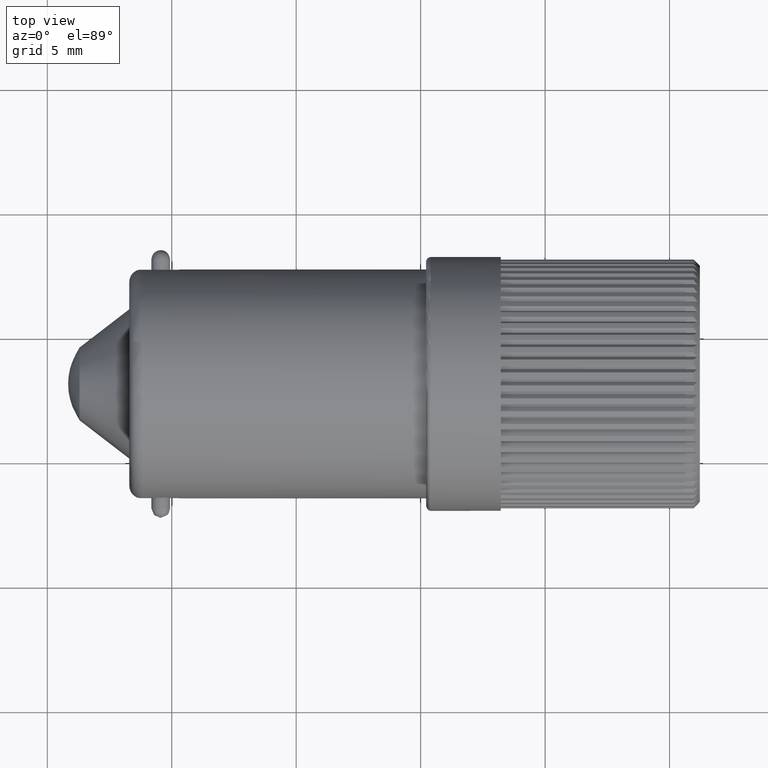
[diagram: clean part render]
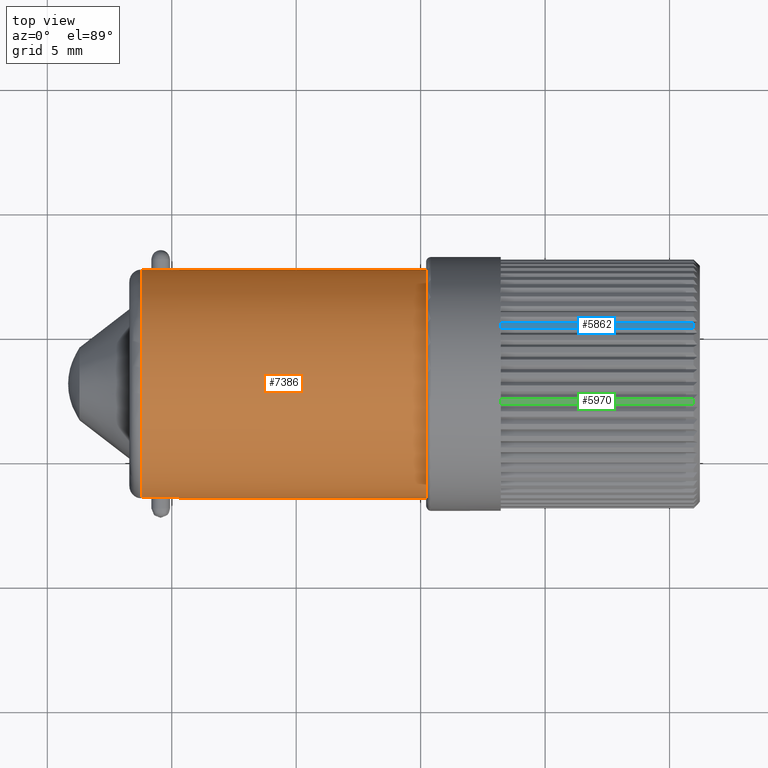
[diagram: same view with three faces highlighted in distinct colors, each labeled with its STEP entity id]
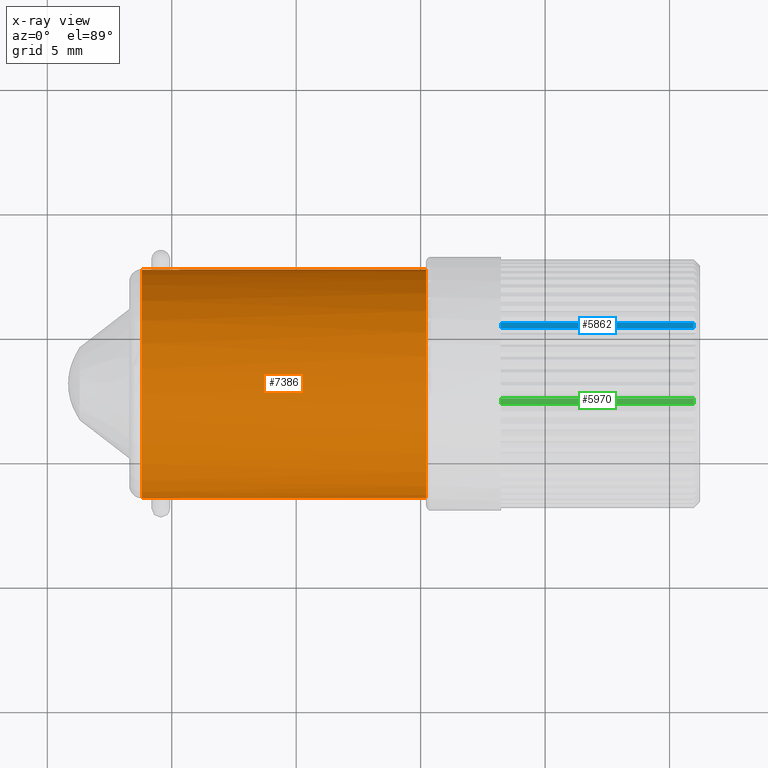
[diagram: x-ray of the same camera — body ghosted, the three highlighted faces saturated]
A machine part, top view with three faces highlighted in distinct colors.
The next image is the same camera in x-ray (body ghosted, the three faces saturated) — at least one of them is partly hidden behind the body in this view.
Their STEP definitions:

[orange] entity #7386 — the highlighted cylindrical surface (bore or boss wall) has radius 4.6 mm, axis along (1, 0, 0).
#7203=CARTESIAN_POINT('',(-9.705609115138564,7.692961736609104,-0.428485705712572));
#7204=VERTEX_POINT('',#7203);
#7205=CARTESIAN_POINT('',(-9.705609115138564,7.692961736609104,0.428485705712572));
#7206=VERTEX_POINT('',#7205);
#7207=CARTESIAN_POINT('',(-9.705609115138564,3.112961736609106,0.0));
#7208=DIRECTION('',(1.0,0.0,0.0));
#7209=DIRECTION('',(0.0,1.0,0.0));
#7210=AXIS2_PLACEMENT_3D('',#7207,#7208,#7209);
#7211=CIRCLE('',#7210,4.599999999999999);
#7212=EDGE_CURVE('',#7204,#7206,#7211,.T.);
#7228=CARTESIAN_POINT('',(-11.205609115138566,7.692961736609104,-0.428485705712572));
#7229=VERTEX_POINT('',#7228);
#7230=CARTESIAN_POINT('',(-11.205609115138566,7.692961736609104,-0.428485705712572));
#7231=DIRECTION('',(1.0,0.0,0.0));
#7232=VECTOR('',#7231,1.500000000000002);
#7233=LINE('',#7230,#7232);
#7234=EDGE_CURVE('',#7229,#7204,#7233,.T.);
#7236=CARTESIAN_POINT('',(-11.205609115138566,7.692961736609104,0.428485705712572));
#7237=VERTEX_POINT('',#7236);
#7260=CARTESIAN_POINT('',(-9.705609115138564,7.692961736609104,0.428485705712572));
#7261=DIRECTION('',(-1.0,0.0,0.0));
#7262=VECTOR('',#7261,1.500000000000002);
#7263=LINE('',#7260,#7262);
#7264=EDGE_CURVE('',#7206,#7237,#7263,.T.);
#7278=CARTESIAN_POINT('',(-9.705609115138564,-1.467038263390893,0.428485705712572));
#7279=VERTEX_POINT('',#7278);
#7280=CARTESIAN_POINT('',(-9.705609115138564,-1.467038263390893,-0.428485705712572));
#7281=VERTEX_POINT('',#7280);
#7282=CARTESIAN_POINT('',(-9.705609115138564,3.112961736609106,0.0));
#7283=DIRECTION('',(1.0,0.0,0.0));
#7284=DIRECTION('',(0.0,1.0,0.0));
#7285=AXIS2_PLACEMENT_3D('',#7282,#7283,#7284);
#7286=CIRCLE('',#7285,4.599999999999999);
#7287=EDGE_CURVE('',#7279,#7281,#7286,.T.);
#7303=CARTESIAN_POINT('',(-11.205609115138566,-1.467038263390893,0.428485705712572));
#7304=VERTEX_POINT('',#7303);
#7305=CARTESIAN_POINT('',(-11.205609115138566,-1.467038263390893,0.428485705712572));
#7306=DIRECTION('',(1.0,0.0,0.0));
#7307=VECTOR('',#7306,1.500000000000002);
#7308=LINE('',#7305,#7307);
#7309=EDGE_CURVE('',#7304,#7279,#7308,.T.);
#7311=CARTESIAN_POINT('',(-11.205609115138566,-1.467038263390893,-0.428485705712572));
#7312=VERTEX_POINT('',#7311);
#7335=CARTESIAN_POINT('',(-9.705609115138564,-1.467038263390893,-0.428485705712572));
#7336=DIRECTION('',(-1.0,0.0,0.0));
#7337=VECTOR('',#7336,1.500000000000002);
#7338=LINE('',#7335,#7337);
#7339=EDGE_CURVE('',#7281,#7312,#7338,.T.);
#7348=CARTESIAN_POINT('',(-5.743960075101469,3.112961736609106,0.0));
#7349=DIRECTION('',(1.0,0.0,0.0));
#7350=DIRECTION('',(0.0,1.0,0.0));
#7351=AXIS2_PLACEMENT_3D('',#7348,#7349,#7350);
#7352=CYLINDRICAL_SURFACE('',#7351,4.599999999999999);
#7353=ORIENTED_EDGE('',*,*,#7234,.T.);
#7354=ORIENTED_EDGE('',*,*,#7212,.T.);
#7355=ORIENTED_EDGE('',*,*,#7264,.T.);
#7356=CARTESIAN_POINT('',(-11.205609115138564,3.112961736609106,0.0));
#7357=DIRECTION('',(-1.0,0.0,0.0));
#7358=DIRECTION('',(0.0,-1.0,0.0));
#7359=AXIS2_PLACEMENT_3D('',#7356,#7357,#7358);
#7360=CIRCLE('',#7359,4.599999999999999);
#7361=EDGE_CURVE('',#7304,#7237,#7360,.T.);
#7362=ORIENTED_EDGE('',*,*,#7361,.F.);
#7363=ORIENTED_EDGE('',*,*,#7309,.T.);
#7364=ORIENTED_EDGE('',*,*,#7287,.T.);
#7365=ORIENTED_EDGE('',*,*,#7339,.T.);
#7366=CARTESIAN_POINT('',(-11.205609115138564,3.112961736609106,0.0));
#7367=DIRECTION('',(-1.0,0.0,0.0));
#7368=DIRECTION('',(0.0,-1.0,0.0));
#7369=AXIS2_PLACEMENT_3D('',#7366,#7367,#7368);
#7370=CIRCLE('',#7369,4.599999999999999);
#7371=EDGE_CURVE('',#7229,#7312,#7370,.T.);
#7372=ORIENTED_EDGE('',*,*,#7371,.F.);
#7373=EDGE_LOOP('',(#7353,#7354,#7355,#7362,#7363,#7364,#7365,#7372));
#7374=FACE_OUTER_BOUND('',#7373,.T.);
#7375=CARTESIAN_POINT('',(0.217688964935625,7.712961736609105,0.0));
#7376=VERTEX_POINT('',#7375);
#7377=CARTESIAN_POINT('',(0.217688964935625,3.112961736609106,0.0));
#7378=DIRECTION('',(1.0,0.0,0.0));
#7379=DIRECTION('',(0.0,1.0,0.0));
#7380=AXIS2_PLACEMENT_3D('',#7377,#7378,#7379);
#7381=CIRCLE('',#7380,4.600000000000000);
#7382=EDGE_CURVE('',#7376,#7376,#7381,.T.);
#7383=ORIENTED_EDGE('',*,*,#7382,.F.);
#7384=EDGE_LOOP('',(#7383));
#7385=FACE_BOUND('',#7384,.T.);
#7386=ADVANCED_FACE('',(#7374,#7385),#7352,.T.);

[blue] entity #5862 — the highlighted cylindrical surface (partial cylindrical patch) has radius 5 mm, axis along (1, 0, 0).
#4153=CARTESIAN_POINT('',(3.217688964935626,5.280791434862301,4.505609215119685));
#4154=VERTEX_POINT('',#4153);
#4155=CARTESIAN_POINT('',(10.967688964935629,5.280791434862299,4.505609215119685));
#4156=VERTEX_POINT('',#4155);
#4157=CARTESIAN_POINT('',(3.217688964935626,5.280791434862301,4.505609215119685));
#4158=DIRECTION('',(1.0,0.0,0.0));
#4159=VECTOR('',#4158,7.750000000000004);
#4160=LINE('',#4157,#4159);
#4161=EDGE_CURVE('',#4154,#4156,#4160,.T.);
#4285=CARTESIAN_POINT('',(10.967688964935629,5.483857835538433,4.402141716037963));
#4286=VERTEX_POINT('',#4285);
#4287=CARTESIAN_POINT('',(3.217688964935625,5.483857835538433,4.402141716037962));
#4288=VERTEX_POINT('',#4287);
#4289=CARTESIAN_POINT('',(10.967688964935629,5.483857835538433,4.402141716037963));
#4290=DIRECTION('',(-1.0,0.0,0.0));
#4291=VECTOR('',#4290,7.750000000000004);
#4292=LINE('',#4289,#4291);
#4293=EDGE_CURVE('',#4286,#4288,#4292,.T.);
#5531=CARTESIAN_POINT('',(3.217688964935626,3.112961736609106,0.0));
#5532=DIRECTION('',(1.0,0.0,0.0));
#5533=DIRECTION('',(0.0,1.0,0.0));
#5534=AXIS2_PLACEMENT_3D('',#5531,#5532,#5533);
#5535=CIRCLE('',#5534,4.999999999999992);
#5536=EDGE_CURVE('',#4288,#4154,#5535,.T.);
#5845=CARTESIAN_POINT('',(7.217688964935625,3.112961736609106,0.0));
#5846=DIRECTION('',(1.0,0.0,0.0));
#5847=DIRECTION('',(0.0,1.0,0.0));
#5848=AXIS2_PLACEMENT_3D('',#5845,#5846,#5847);
#5849=CYLINDRICAL_SURFACE('',#5848,4.999999999999996);
#5850=ORIENTED_EDGE('',*,*,#4161,.T.);
#5851=CARTESIAN_POINT('',(10.967688964935629,3.112961736609106,0.0));
#5852=DIRECTION('',(1.0,0.0,0.0));
#5853=DIRECTION('',(0.0,-1.0,0.0));
#5854=AXIS2_PLACEMENT_3D('',#5851,#5852,#5853);
#5855=CIRCLE('',#5854,4.999999999999996);
#5856=EDGE_CURVE('',#4286,#4156,#5855,.T.);
#5857=ORIENTED_EDGE('',*,*,#5856,.F.);
#5858=ORIENTED_EDGE('',*,*,#4293,.T.);
#5859=ORIENTED_EDGE('',*,*,#5536,.T.);
#5860=EDGE_LOOP('',(#5850,#5857,#5858,#5859));
#5861=FACE_OUTER_BOUND('',#5860,.T.);
#5862=ADVANCED_FACE('',(#5861),#5849,.T.);

[green] entity #5970 — the highlighted cylindrical surface (partial cylindrical patch) has radius 5 mm, axis along (1, 0, 0).
#3643=CARTESIAN_POINT('',(3.217688964935626,2.218442154166238,4.919332751159063));
#3644=VERTEX_POINT('',#3643);
#3645=CARTESIAN_POINT('',(10.967688964935629,2.218442154166237,4.919332751159063));
#3646=VERTEX_POINT('',#3645);
#3647=CARTESIAN_POINT('',(3.217688964935626,2.218442154166238,4.919332751159063));
#3648=DIRECTION('',(1.0,0.0,0.0));
#3649=VECTOR('',#3648,7.750000000000004);
#3650=LINE('',#3647,#3649);
#3651=EDGE_CURVE('',#3644,#3646,#3650,.T.);
#3775=CARTESIAN_POINT('',(10.967688964935629,2.443542993351605,4.954985221590020));
#3776=VERTEX_POINT('',#3775);
#3777=CARTESIAN_POINT('',(3.217688964935625,2.443542993351606,4.954985221590020));
#3778=VERTEX_POINT('',#3777);
#3779=CARTESIAN_POINT('',(10.967688964935629,2.443542993351605,4.954985221590020));
#3780=DIRECTION('',(-1.0,0.0,0.0));
#3781=VECTOR('',#3780,7.750000000000004);
#3782=LINE('',#3779,#3781);
#3783=EDGE_CURVE('',#3776,#3778,#3782,.T.);
#5477=CARTESIAN_POINT('',(3.217688964935626,3.112961736609106,0.0));
#5478=DIRECTION('',(1.0,0.0,0.0));
#5479=DIRECTION('',(0.0,1.0,0.0));
#5480=AXIS2_PLACEMENT_3D('',#5477,#5478,#5479);
#5481=CIRCLE('',#5480,4.999999999999992);
#5482=EDGE_CURVE('',#3778,#3644,#5481,.T.);
#5953=CARTESIAN_POINT('',(7.217688964935625,3.112961736609106,0.0));
#5954=DIRECTION('',(1.0,0.0,0.0));
#5955=DIRECTION('',(0.0,1.0,0.0));
#5956=AXIS2_PLACEMENT_3D('',#5953,#5954,#5955);
#5957=CYLINDRICAL_SURFACE('',#5956,4.999999999999996);
#5958=ORIENTED_EDGE('',*,*,#3651,.T.);
#5959=CARTESIAN_POINT('',(10.967688964935629,3.112961736609106,0.0));
#5960=DIRECTION('',(1.0,0.0,0.0));
#5961=DIRECTION('',(0.0,-1.0,0.0));
#5962=AXIS2_PLACEMENT_3D('',#5959,#5960,#5961);
#5963=CIRCLE('',#5962,4.999999999999996);
#5964=EDGE_CURVE('',#3776,#3646,#5963,.T.);
#5965=ORIENTED_EDGE('',*,*,#5964,.F.);
#5966=ORIENTED_EDGE('',*,*,#3783,.T.);
#5967=ORIENTED_EDGE('',*,*,#5482,.T.);
#5968=EDGE_LOOP('',(#5958,#5965,#5966,#5967));
#5969=FACE_OUTER_BOUND('',#5968,.T.);
#5970=ADVANCED_FACE('',(#5969),#5957,.T.);